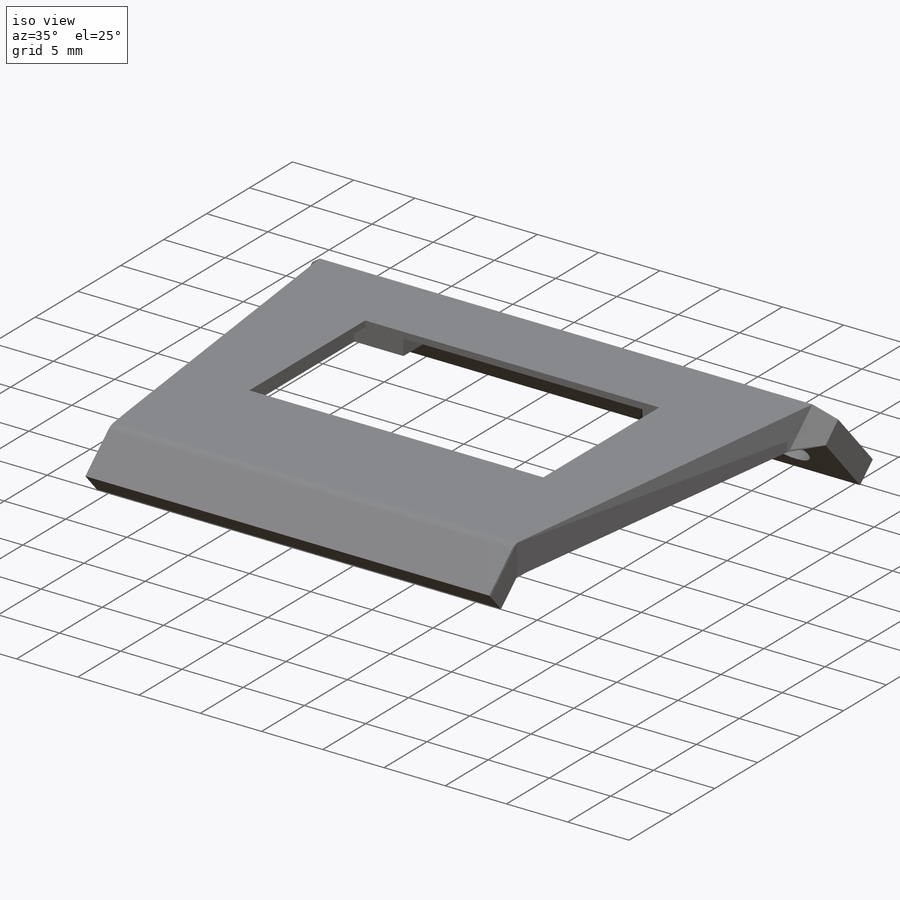
[diagram: iso view]
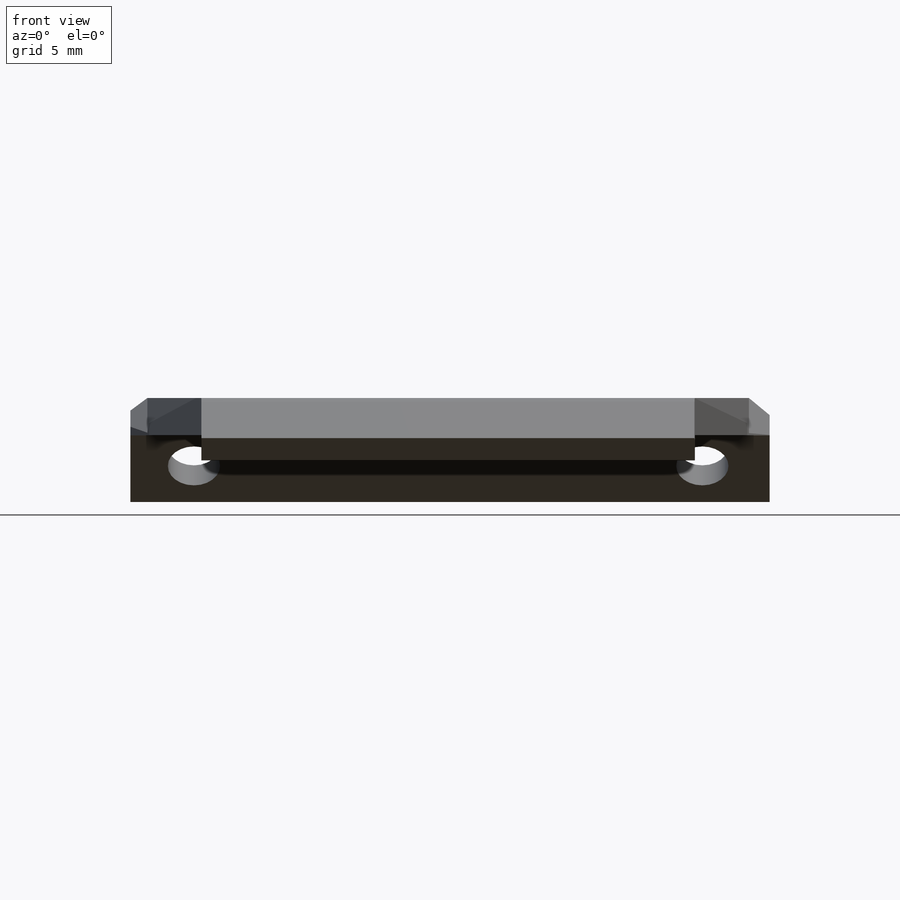
[diagram: front view]
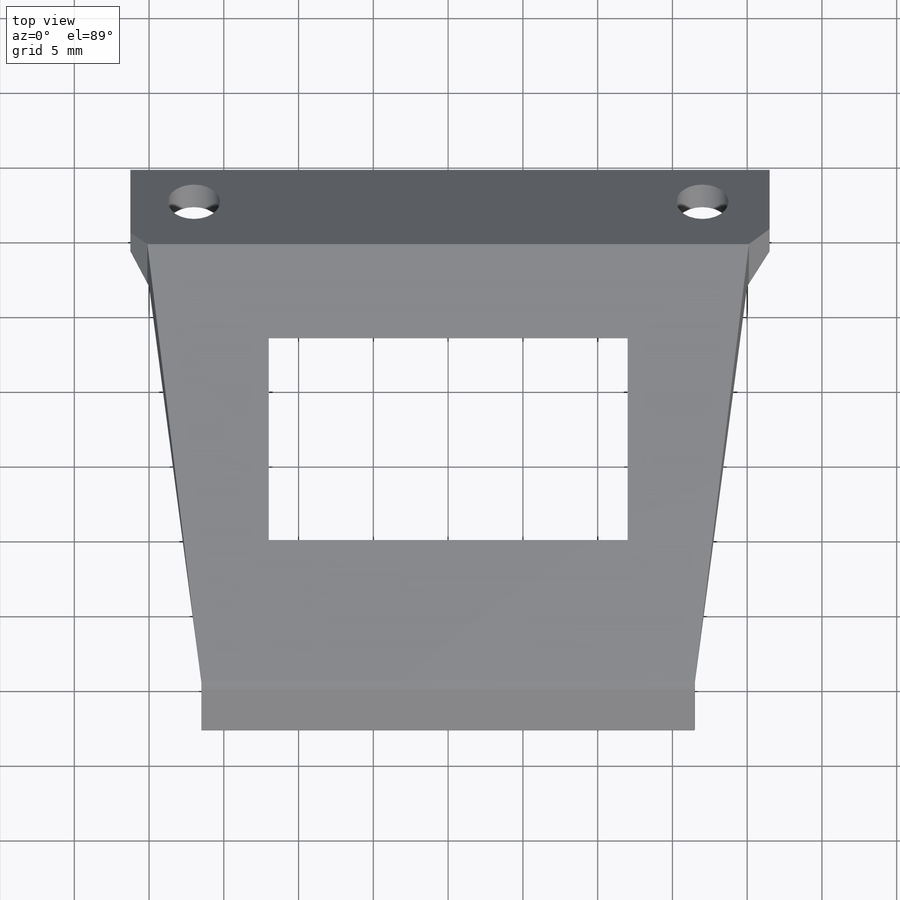
[diagram: top view]
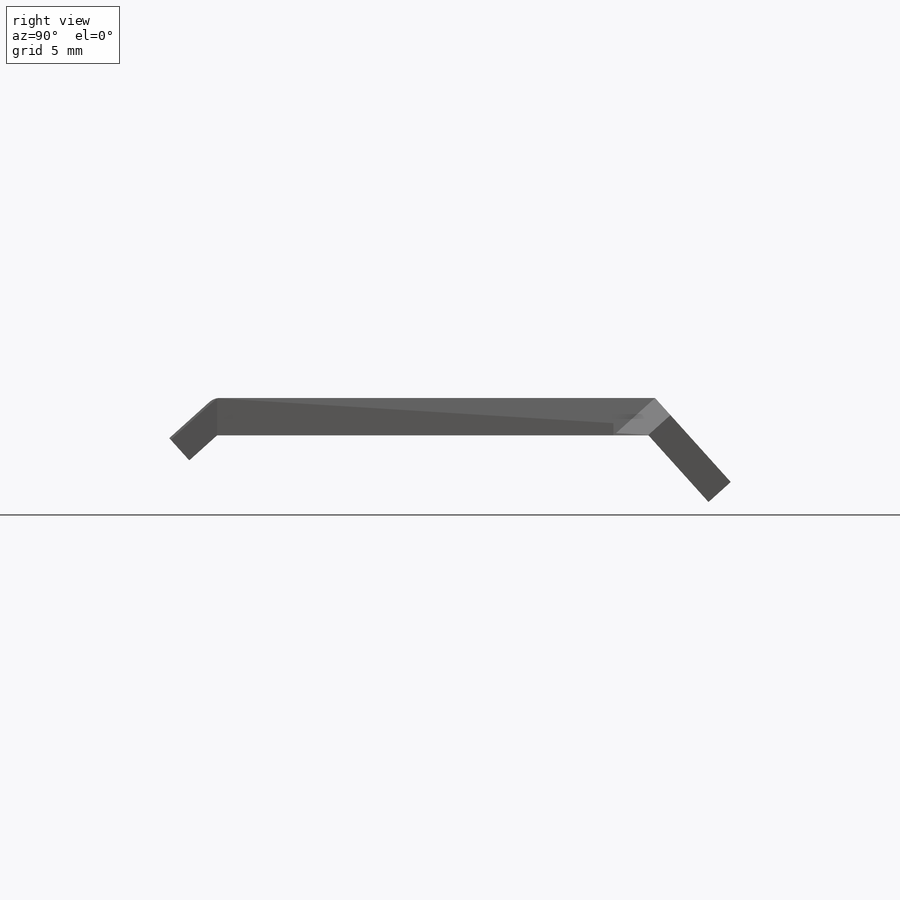
[diagram: right view]
SOLIDWORKS PART (.sldprt)
format: sldprt  version: not decoded by parser v0  size: 304,640 bytes
history: native  units: mm
features: sketch x8, extrude x5, cut_extrude x3, material x1, chamfer x1, fillet x1 (+12 scaffold rows collapsed)
feature tree (31):
  scaffold x12  (default folders/planes/origin — collapsed)
  material  "Material <not specified>"
  sketch  "Sketch1"  dims[c1.D1=~12.595269mm c1.D2=~18.689753mm c2.D1=27.5mm c2.D2=19.5mm c2.D3=4.75mm c2.D4=9.75mm c2.D5=13.75mm c2.D6=2.75mm c2.D7=2.75mm c2.D8=26.5mm c2.D9=3.5mm c2.D10=3.5mm c2.D11=2.35mm c2.D12=1.25mm c2.D13=1.5mm]
  extrude  "Boss-Extrude1"  Depth=2.5mm
  sketch  "Sketch2"  dims[c1.D1=~1.360962mm c2.D1=42.0deg c2.D2=2.0mm c2.D3=2.5mm c2.D4=~2.529487mm c3.D4=~129.586037deg c4.D4=~2.091536mm c5.D4=48.0deg c5.D5=2.0mm c5.D6=5.0mm]
  extrude  "Boss-Extrude2"  [1 undecoded]
  sketch  "Sketch3"  dims[c1.D1=2.0mm c1.D2=~3.474398mm c2.D2=48.0deg c2.D3=6.0mm]
  extrude  "Boss-Extrude3"  [1 undecoded]
  sketch  "Sketch4"  dims[c1.D1=~3.714609mm c2.D1=48.0deg c2.D2=0.25mm c2.D3=0.25mm c2.D4=3.7199mm c3.D4=45.0deg]
  cut_extrude  "Cut-Extrude1"  [1 undecoded]
  sketch  "Sketch5"  dims[D1=3.5mm D2=34.0mm D3=17.0mm D4=3.25mm]
  cut_extrude  "Cut-Extrude2"  [1 undecoded]
  chamfer  "Chamfer1"  Distance=2mm Angle=70deg
  sketch  "Sketch6"  dims[c1.D1=4.75mm c1.D2=~2.903601mm c2.D1=4.75mm c2.D2=~4.025026mm c3.D1=6.0mm c3.D2=6.0mm]
  extrude  "Boss-Extrude4"  [1 undecoded]
  sketch  "Sketch7"  dims[c1.D1=~3.94887mm c1.D2=~23.228509mm c2.D1=4.0mm c2.D2=4.0mm c2.D3=4.0mm]
  cut_extrude  "Cut-Extrude3"  Depth=0.5mm
  sketch  "Sketch8"  dims[c1.D1=19.5mm c1.D2=27.5mm c2.D1=~16.071386mm c2.D2=~24.171364mm c3.D1=4.75mm c3.D2=1.75mm c3.D3=1.75mm c3.D4=1.25mm]
  extrude  "Boss-Extrude5"  [1 undecoded]
  fillet  "Fillet1"  Radius=1mm
decode coverage: 12 of 18 modeling features carry decoded parameters
note: ~ marks probable driven/reference dimensions
note: 6 parameter values undecoded
summary: no parameter record found for 6 features
note: suppression state not decoded; provenance and decode notes live in map.json
